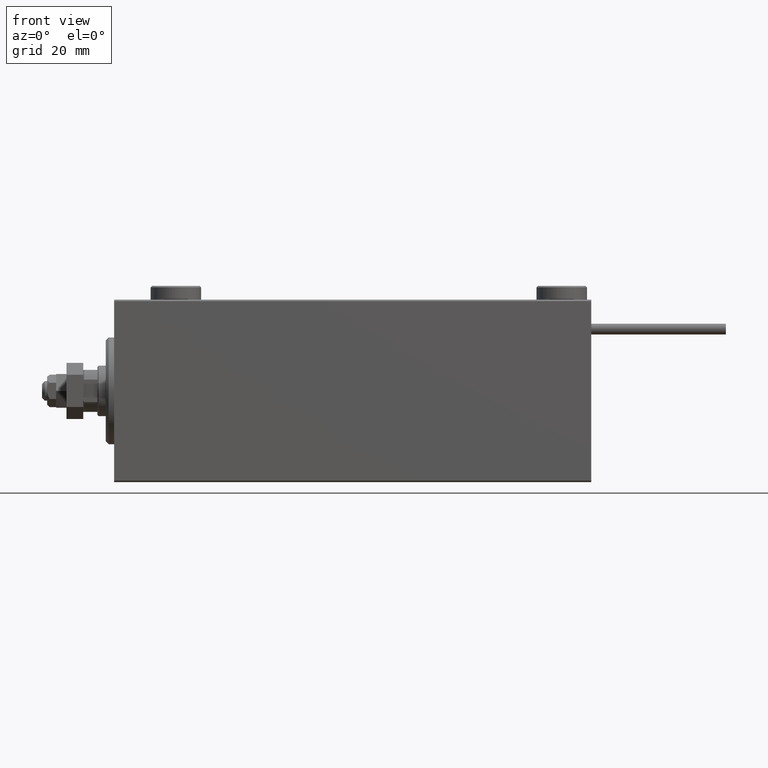
[diagram: clean part render]
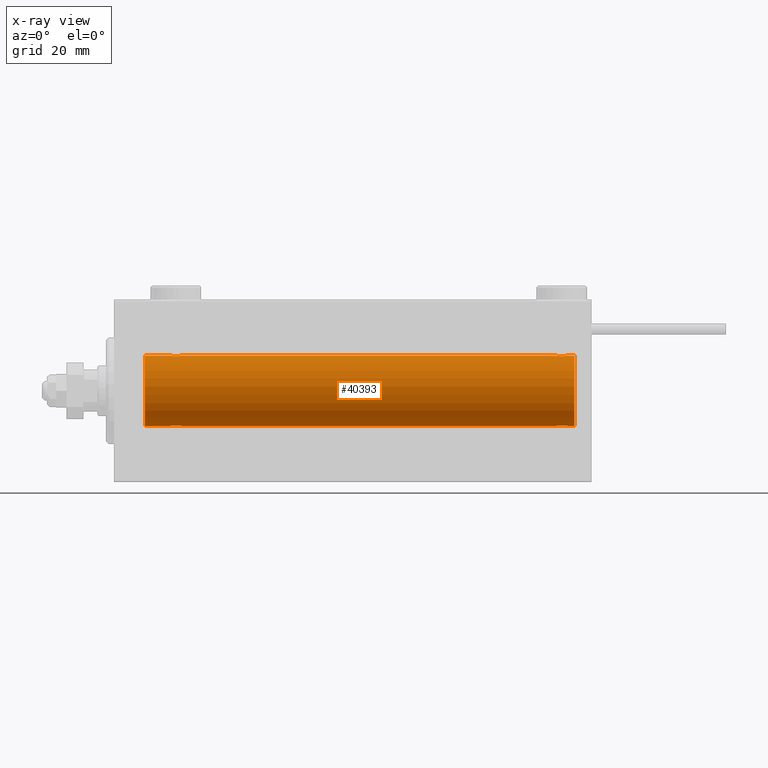
[diagram: x-ray — body ghosted, one internal face saturated and labeled with its STEP entity id]
A machine part, front view, then the same camera in x-ray: the body is ghosted and one INTERNAL B-rep face — a face not visible from any outside direction — is saturated and labeled: STEP entity #40393.
In plain terms, the highlighted cylindrical surface (edge-blend (fillet) strip) has radius 12.5 mm, axis along (-1, -0, -0).
Its self-contained STEP definition (entity closure, byte-faithful):
#369 = LINE ( 'NONE', #40763, #25549 ) ;
#893 = CARTESIAN_POINT ( 'NONE',  ( 21.86910032676576421, -2.000082296475566679, -12.33894933996983490 ) ) ;
#1412 = CARTESIAN_POINT ( 'NONE',  ( 21.48306273302371494, -1.936441098420706997, -12.34912369794528431 ) ) ;
#1685 = CARTESIAN_POINT ( 'NONE',  ( 21.35574721202270254, -1.897913903092047327, -12.35518060345725289 ) ) ;
#1821 = CARTESIAN_POINT ( 'NONE',  ( 21.35356103036408371, -1.897190184049190043, 12.35529285772521391 ) ) ;
#2002 = CARTESIAN_POINT ( 'NONE',  ( 164.0000000000000000, 0.000000000000000000, 0.000000000000000000 ) ) ;
#2125 = CARTESIAN_POINT ( 'NONE',  ( 161.5000000000000000, 1.530808426269529245E-15, -12.50000000000000000 ) ) ;
#2679 = CARTESIAN_POINT ( 'NONE',  ( 164.0000000000000000, 0.000000000000000000, 0.000000000000000000 ) ) ;
#2773 = B_SPLINE_CURVE_WITH_KNOTS ( 'NONE', 3,
 ( #15061, #51723, #31276, #15320, #44801, #12373, #32312, #28595, #20343, #7845, #52499, #8635, #16088, #48535, #4909, #4111, #24343, #32829, #16628, #41055, #49053, #4646, #21136, #3854, #25132, #12634, #45065, #24874 ),
 .UNSPECIFIED., .F., .F.,
 ( 4, 2, 2, 2, 2, 2, 2, 2, 2, 2, 2, 2, 2, 4 ),
 ( 0.006262980370572171496, 0.007045658964677375090, 0.007436998261729976453, 0.007828337558782578684, 0.008219676855835179180, 0.008611016152887781411, 0.009002355449940383642, 0.009393694746992985872, 0.009785034044045588103, 0.01017637334109819033, 0.01056771263815079256, 0.01095905193520339306, 0.01174173052930859579, 0.01252440912341379851 ),
 .UNSPECIFIED. ) ;
#2871 = DIRECTION ( 'NONE',  ( 0.000000000000000000, 0.000000000000000000, 1.000000000000000000 ) ) ;
#3578 = CARTESIAN_POINT ( 'NONE',  ( 158.2814588045805522, -1.591305132013888457, -12.39851226212235957 ) ) ;
#3854 = CARTESIAN_POINT ( 'NONE',  ( 161.0974477469102908, -1.231226695485358569, 12.44059298055988450 ) ) ;
#4111 = CARTESIAN_POINT ( 'NONE',  ( 159.6308996732342678, -2.000082296475561794, 12.33894933996983134 ) ) ;
#4327 = CARTESIAN_POINT ( 'NONE',  ( 164.0000000000000000, 0.000000000000000000, 12.50000000000000000 ) ) ;
#4395 = CARTESIAN_POINT ( 'NONE',  ( 24.00000000000000000, -2.019790789754703983E-15, 12.50000000000000000 ) ) ;
#4646 = CARTESIAN_POINT ( 'NONE',  ( 160.7185411954193626, -1.591305132013873358, 12.39851226212236490 ) ) ;
#4881 = CARTESIAN_POINT ( 'NONE',  ( 22.88874725797039389, -1.796480516834687347, -12.37033750336835247 ) ) ;
#4909 = CARTESIAN_POINT ( 'NONE',  ( 159.3665974954870137, -1.999916920503812090, 12.33897614545467292 ) ) ;
#5399 = CARTESIAN_POINT ( 'NONE',  ( 22.64643896963591985, -1.897190184049187378, -12.35529285772521924 ) ) ;
#5673 = CARTESIAN_POINT ( 'NONE',  ( 23.50722151467992660, -1.321088093821078502, -12.43033959299025248 ) ) ;
#6074 = CARTESIAN_POINT ( 'NONE',  ( 22.51693726697628506, -1.936441098420709439, 12.34912369794528786 ) ) ;
#6400 = FACE_OUTER_BOUND ( 'NONE', #22460, .T. ) ;
#6592 = CARTESIAN_POINT ( 'NONE',  ( 20.67700056892266502, -1.505544071529936634, 12.40934942683854025 ) ) ;
#6782 = CARTESIAN_POINT ( 'NONE',  ( 158.8557472120227203, -1.897913903092060650, -12.35518060345724933 ) ) ;
#6852 = CARTESIAN_POINT ( 'NONE',  ( 21.73608626897564733, -1.986793270638199882, 12.34112317291865146 ) ) ;
#6858 = EDGE_CURVE ( 'NONE', #13747, #34546, #15780, .T. ) ;
#7116 = CARTESIAN_POINT ( 'NONE',  ( 23.94665679898379906, -0.5275951738695691118, 12.49118442338578561 ) ) ;
#7286 = VECTOR ( 'NONE', #32653, 1000.000000000000000 ) ;
#7310 = CARTESIAN_POINT ( 'NONE',  ( 160.0196147235787691, -1.935716533151650820, -12.34923763528284724 ) ) ;
#7532 = ORIENTED_EDGE ( 'NONE', *, *, #27179, .T. ) ;
#7634 = CARTESIAN_POINT ( 'NONE',  ( 11.00000000000001066, 0.000000000000000000, 0.000000000000000000 ) ) ;
#7721 = CARTESIAN_POINT ( 'NONE',  ( 164.0000000000000000, 1.530808498934191521E-15, -12.50000000000000000 ) ) ;
#7845 = CARTESIAN_POINT ( 'NONE',  ( 158.4965442592331044, -1.734959850168406259, 12.37922718965050883 ) ) ;
#7951 = B_SPLINE_CURVE_WITH_KNOTS ( 'NONE', 3,
 ( #24850, #33849, #13662, #21112, #38367, #34118, #5673, #9128, #37831, #25892, #4881, #5399, #18181, #50065, #29875, #893, #49535, #1412, #1685, #37306, #17122, #42077, #33324, #9391, #12873, #45299, #46086, #8872 ),
 .UNSPECIFIED., .F., .F.,
 ( 4, 2, 2, 2, 2, 2, 2, 2, 2, 2, 2, 2, 2, 4 ),
 ( 0.006262980370572176700, 0.007045658964677373355, 0.007436998261729973851, 0.007828337558782575215, 0.008219676855835175711, 0.008611016152887776207, 0.009002355449940376703, 0.009393694746992977199, 0.009785034044045577695, 0.01017637334109817646, 0.01056771263815077869, 0.01095905193520337745, 0.01174173052930858711, 0.01252440912341379504 ),
 .UNSPECIFIED. ) ;
#8006 = VECTOR ( 'NONE', #40662, 1000.000000000000000 ) ;
#8010 = ORIENTED_EDGE ( 'NONE', *, *, #27637, .F. ) ;
#8635 = CARTESIAN_POINT ( 'NONE',  ( 158.8535610303641192, -1.897190184049181383, 12.35529285772521391 ) ) ;
#8872 = CARTESIAN_POINT ( 'NONE',  ( 19.99999999999999645, -3.213890523917628161E-15, -12.50000000000000000 ) ) ;
#9128 = CARTESIAN_POINT ( 'NONE',  ( 23.32299943107732432, -1.505544071529935080, -12.40934942683853848 ) ) ;
#9221 = AXIS2_PLACEMENT_3D ( 'NONE', #2679, #50804, #43076 ) ;
#9391 = CARTESIAN_POINT ( 'NONE',  ( 20.40255225308977671, -1.231226695485369893, -12.44059298055988627 ) ) ;
#10029 = LINE ( 'NONE', #35008, #26723 ) ;
#10063 = CARTESIAN_POINT ( 'NONE',  ( 19.99999999999999645, -7.265724481447607133E-23, 12.50000000000000000 ) ) ;
#10476 = ORIENTED_EDGE ( 'NONE', *, *, #13973, .F. ) ;
#10522 = CARTESIAN_POINT ( 'NONE',  ( 157.5533432010162187, -0.5275951738695863202, -12.49118442338578028 ) ) ;
#10587 = CARTESIAN_POINT ( 'NONE',  ( 21.11125274202960256, -1.796480516834689567, 12.37033750336835602 ) ) ;
#11039 = CARTESIAN_POINT ( 'NONE',  ( 157.9025522530897376, -1.231226695485374778, -12.44059298055987917 ) ) ;
#11108 = CARTESIAN_POINT ( 'NONE',  ( 22.88616153879432957, -1.797736511708064366, 12.37015393445321010 ) ) ;
#11372 = DIRECTION ( 'NONE',  ( -1.000000000000000000, 0.000000000000000000, 0.000000000000000000 ) ) ;
#11567 = CARTESIAN_POINT ( 'NONE',  ( 161.2978560646826054, -0.8858253204748055554, -12.46915613403961665 ) ) ;
#12280 = VERTEX_POINT ( 'NONE', #13966 ) ;
#12373 = CARTESIAN_POINT ( 'NONE',  ( 157.9101890977170797, -1.220538259806341008, 12.44075068685997110 ) ) ;
#12634 = CARTESIAN_POINT ( 'NONE',  ( 161.4466567989838097, -0.5275951738695676685, 12.49118442338578738 ) ) ;
#12819 = CARTESIAN_POINT ( 'NONE',  ( 164.0000000000000000, 1.530808498934191521E-15, -12.50000000000000000 ) ) ;
#12873 = CARTESIAN_POINT ( 'NONE',  ( 20.25337863379106551, -1.008535157355840761, -12.46157701909767646 ) ) ;
#13662 = CARTESIAN_POINT ( 'NONE',  ( 23.94744340572329833, -0.5247436444070328054, -12.49130933415156619 ) ) ;
#13685 = VERTEX_POINT ( 'NONE', #44683 ) ;
#13747 = VERTEX_POINT ( 'NONE', #2125 ) ;
#13966 = CARTESIAN_POINT ( 'NONE',  ( 157.5000000000000000, -7.266434456262306043E-23, 12.50000000000000000 ) ) ;
#13973 = EDGE_CURVE ( 'NONE', #41693, #13685, #24169, .T. ) ;
#14065 = CARTESIAN_POINT ( 'NONE',  ( 22.26093497285606304, -1.987194304939079004, 12.34105826212746138 ) ) ;
#14521 = CARTESIAN_POINT ( 'NONE',  ( 160.1464389696359660, -1.897190184049198036, -12.35529285772521213 ) ) ;
#14815 = DIRECTION ( 'NONE',  ( -1.000000000000000000, -0.000000000000000000, -0.000000000000000000 ) ) ;
#14897 = VECTOR ( 'NONE', #39699, 1000.000000000000000 ) ;
#14941 = ORIENTED_EDGE ( 'NONE', *, *, #42086, .T. ) ;
#15037 = CARTESIAN_POINT ( 'NONE',  ( 161.0898109022829203, -1.220538259806352333, -12.44075068685996932 ) ) ;
#15061 = CARTESIAN_POINT ( 'NONE',  ( 157.5000000000000000, -7.266434456262306043E-23, 12.50000000000000000 ) ) ;
#15105 = CARTESIAN_POINT ( 'NONE',  ( 23.59744774691022684, -1.231226695485370337, 12.44059298055987917 ) ) ;
#15320 = CARTESIAN_POINT ( 'NONE',  ( 157.7021439353174515, -0.8858253204748001153, 12.46915613403961132 ) ) ;
#15780 = B_SPLINE_CURVE_WITH_KNOTS ( 'NONE', 3,
 ( #34189, #30475, #42940, #11567, #43201, #15037, #19298, #27279, #51960, #35759, #39992, #14521, #7310, #35497, #19033, #47735, #19557, #31255, #6782, #46952, #47471, #3578, #51702, #11039, #26757, #10522, #50922, #34973 ),
 .UNSPECIFIED., .F., .F.,
 ( 4, 2, 2, 2, 2, 2, 2, 2, 2, 2, 2, 2, 2, 4 ),
 ( 0.006262980370572156751, 0.007045658964677361212, 0.007436998261729963443, 0.007828337558782566541, 0.008219676855835168772, 0.008611016152887771002, 0.009002355449940373233, 0.009393694746992975464, 0.009785034044045577695, 0.01017637334109817993, 0.01056771263815078216, 0.01095905193520338439, 0.01174173052930858885, 0.01252440912341379331 ),
 .UNSPECIFIED. ) ;
#16088 = CARTESIAN_POINT ( 'NONE',  ( 158.9803852764212593, -1.935716533151636165, 12.34923763528285434 ) ) ;
#16247 = VERTEX_POINT ( 'NONE', #40521 ) ;
#16628 = CARTESIAN_POINT ( 'NONE',  ( 160.1442527879773365, -1.897913903092044663, 12.35518060345725289 ) ) ;
#16980 = CARTESIAN_POINT ( 'NONE',  ( 11.00000000000001066, 1.530808498934191521E-15, -12.50000000000000000 ) ) ;
#17122 = CARTESIAN_POINT ( 'NONE',  ( 20.99900207901491811, -1.736403706023270654, -12.37902502246767966 ) ) ;
#18181 = CARTESIAN_POINT ( 'NONE',  ( 22.51961472357873717, -1.935716533151642826, -12.34923763528285257 ) ) ;
#18235 = DIRECTION ( 'NONE',  ( -1.000000000000000000, 0.000000000000000000, 0.000000000000000000 ) ) ;
#18321 = CARTESIAN_POINT ( 'NONE',  ( 23.21854119541937678, -1.591305132013879131, 12.39851226212236135 ) ) ;
#19033 = CARTESIAN_POINT ( 'NONE',  ( 159.6334025045129863, -1.999916920503827633, -12.33897614545467114 ) ) ;
#19298 = CARTESIAN_POINT ( 'NONE',  ( 161.0072215146799977, -1.321088093821073395, -12.43033959299025426 ) ) ;
#19450 = CIRCLE ( 'NONE', #44053, 12.50000000000000000 ) ;
#19557 = CARTESIAN_POINT ( 'NONE',  ( 159.2390650271439370, -1.987194304939089884, -12.34105826212745782 ) ) ;
#19638 = B_SPLINE_CURVE_WITH_KNOTS ( 'NONE', 3,
 ( #10063, #42480, #31051, #50734, #22831, #38234, #22571, #6592, #23097, #51505, #10587, #1821, #43531, #6852, #31320, #38761, #14065, #6074, #34779, #11108, #22311, #18321, #42746, #15105, #30538, #7116, #50990, #39012 ),
 .UNSPECIFIED., .F., .F.,
 ( 4, 2, 2, 2, 2, 2, 2, 2, 2, 2, 2, 2, 2, 4 ),
 ( 0.006262980370572162822, 0.007045658964677358610, 0.007436998261729958239, 0.007828337558782557867, 0.008219676855835158363, 0.008611016152887758859, 0.009002355449940359355, 0.009393694746992958117, 0.009785034044045558613, 0.01017637334109815911, 0.01056771263815075960, 0.01095905193520336010, 0.01174173052930856803, 0.01252440912341377596 ),
 .UNSPECIFIED. ) ;
#20343 = CARTESIAN_POINT ( 'NONE',  ( 158.2797285010257724, -1.589951752150270181, 12.39868561261689095 ) ) ;
#21112 = CARTESIAN_POINT ( 'NONE',  ( 23.79785606468258052, -0.8858253204748003373, -12.46915613403960954 ) ) ;
#21136 = CARTESIAN_POINT ( 'NONE',  ( 160.8211671285144462, -1.507135374967689234, 12.40915432986587241 ) ) ;
#21717 = EDGE_CURVE ( 'NONE', #41693, #29758, #19638, .T. ) ;
#22311 = CARTESIAN_POINT ( 'NONE',  ( 23.00099792098507834, -1.736403706023272875, 12.37902502246767789 ) ) ;
#22460 = EDGE_LOOP ( 'NONE', ( #37238, #36283, #49034, #36817, #35400, #7532, #30565, #10476, #44134, #8010, #14941, #33473 ) ) ;
#22571 = CARTESIAN_POINT ( 'NONE',  ( 20.49277848532006274, -1.321088093821079168, 12.43033959299025071 ) ) ;
#22831 = CARTESIAN_POINT ( 'NONE',  ( 20.26436921980423378, -1.002396200863559850, 12.46022444231050841 ) ) ;
#23097 = CARTESIAN_POINT ( 'NONE',  ( 20.77972850102579372, -1.589951752150277953, 12.39868561261689095 ) ) ;
#23841 = EDGE_CURVE ( 'NONE', #51090, #29131, #46668, .T. ) ;
#24169 = LINE ( 'NONE', #32131, #7286 ) ;
#24343 = CARTESIAN_POINT ( 'NONE',  ( 159.7609349728561199, -1.987194304939070788, 12.34105826212745960 ) ) ;
#24850 = CARTESIAN_POINT ( 'NONE',  ( 24.00000000000000000, 1.530808426277417854E-15, -12.50000000000000000 ) ) ;
#24874 = CARTESIAN_POINT ( 'NONE',  ( 161.5000000000000000, 3.161822422844574965E-15, 12.50000000000000000 ) ) ;
#25132 = CARTESIAN_POINT ( 'NONE',  ( 161.2466213662089842, -1.008535157355840761, 12.46157701909768178 ) ) ;
#25549 = VECTOR ( 'NONE', #45035, 1000.000000000000000 ) ;
#25892 = CARTESIAN_POINT ( 'NONE',  ( 23.00345574076691335, -1.734959850168410256, -12.37922718965050528 ) ) ;
#26723 = VECTOR ( 'NONE', #14815, 1000.000000000000000 ) ;
#26757 = CARTESIAN_POINT ( 'NONE',  ( 157.7533786337910726, -1.008535157355858525, -12.46157701909767468 ) ) ;
#27179 = EDGE_CURVE ( 'NONE', #29566, #31864, #35908, .T. ) ;
#27279 = CARTESIAN_POINT ( 'NONE',  ( 160.8229994310773918, -1.505544071529932415, -12.40934942683854025 ) ) ;
#27637 = EDGE_CURVE ( 'NONE', #12280, #29758, #10029, .T. ) ;
#28256 = DIRECTION ( 'NONE',  ( -1.000000000000000000, -0.000000000000000000, -0.000000000000000000 ) ) ;
#28595 = CARTESIAN_POINT ( 'NONE',  ( 158.1770005689227219, -1.505544071529936634, 12.40934942683854203 ) ) ;
#29089 = CARTESIAN_POINT ( 'NONE',  ( 157.5000000000000000, -1.754126588401769966E-14, -12.50000000000000000 ) ) ;
#29131 = VERTEX_POINT ( 'NONE', #51928 ) ;
#29140 = EDGE_CURVE ( 'NONE', #29131, #44055, #39956, .T. ) ;
#29566 = VERTEX_POINT ( 'NONE', #39246 ) ;
#29758 = VERTEX_POINT ( 'NONE', #4395 ) ;
#29875 = CARTESIAN_POINT ( 'NONE',  ( 22.13340250451295077, -1.999916920503817197, -12.33897614545467469 ) ) ;
#30475 = CARTESIAN_POINT ( 'NONE',  ( 161.5000000000000568, -0.2612140938986745597, -12.50000000000000178 ) ) ;
#30538 = CARTESIAN_POINT ( 'NONE',  ( 23.74662136620892383, -1.008535157355843648, 12.46157701909767823 ) ) ;
#30565 = ORIENTED_EDGE ( 'NONE', *, *, #40815, .T. ) ;
#31051 = CARTESIAN_POINT ( 'NONE',  ( 20.05255659427669812, -0.5247436444070349149, 12.49130933415156974 ) ) ;
#31255 = CARTESIAN_POINT ( 'NONE',  ( 158.9830627330237292, -1.936441098420720319, -12.34912369794528608 ) ) ;
#31276 = CARTESIAN_POINT ( 'NONE',  ( 157.5525565942766946, -0.5247436444070314732, 12.49130933415156619 ) ) ;
#31320 = CARTESIAN_POINT ( 'NONE',  ( 21.86659749548704212, -1.999916920503819862, 12.33897614545467469 ) ) ;
#31864 = VERTEX_POINT ( 'NONE', #16980 ) ;
#32131 = CARTESIAN_POINT ( 'NONE',  ( 164.0000000000000000, 0.000000000000000000, 12.50000000000000000 ) ) ;
#32312 = CARTESIAN_POINT ( 'NONE',  ( 157.9927784853200308, -1.321088093821080278, 12.43033959299025071 ) ) ;
#32653 = DIRECTION ( 'NONE',  ( -1.000000000000000000, -0.000000000000000000, -0.000000000000000000 ) ) ;
#32754 = LINE ( 'NONE', #12819, #38750 ) ;
#32829 = CARTESIAN_POINT ( 'NONE',  ( 160.0169372669762993, -1.936441098420697671, 12.34912369794529141 ) ) ;
#33324 = CARTESIAN_POINT ( 'NONE',  ( 20.67883287148555382, -1.507135374967699670, -12.40915432986587064 ) ) ;
#33473 = ORIENTED_EDGE ( 'NONE', *, *, #29140, .F. ) ;
#33849 = CARTESIAN_POINT ( 'NONE',  ( 24.00000000000000711, -0.2612140938986747818, -12.50000000000000533 ) ) ;
#34118 = CARTESIAN_POINT ( 'NONE',  ( 23.58981090228289546, -1.220538259806347225, -12.44075068685997287 ) ) ;
#34189 = CARTESIAN_POINT ( 'NONE',  ( 161.5000000000000000, 1.530808426269529245E-15, -12.50000000000000000 ) ) ;
#34435 = DIRECTION ( 'NONE',  ( 0.000000000000000000, 0.000000000000000000, 1.000000000000000000 ) ) ;
#34540 = EDGE_CURVE ( 'NONE', #16247, #29566, #7951, .T. ) ;
#34546 = VERTEX_POINT ( 'NONE', #29089 ) ;
#34779 = CARTESIAN_POINT ( 'NONE',  ( 22.64425278797729746, -1.897913903092049104, 12.35518060345724933 ) ) ;
#34973 = CARTESIAN_POINT ( 'NONE',  ( 157.5000000000000000, -1.754126588401769966E-14, -12.50000000000000000 ) ) ;
#35008 = CARTESIAN_POINT ( 'NONE',  ( 164.0000000000000000, 0.000000000000000000, 12.50000000000000000 ) ) ;
#35400 = ORIENTED_EDGE ( 'NONE', *, *, #34540, .T. ) ;
#35466 = EDGE_CURVE ( 'NONE', #51090, #13747, #32754, .T. ) ;
#35497 = CARTESIAN_POINT ( 'NONE',  ( 159.7639137310243598, -1.986793270638207209, -12.34112317291865146 ) ) ;
#35759 = CARTESIAN_POINT ( 'NONE',  ( 160.5034557407669809, -1.734959850168406259, -12.37922718965051061 ) ) ;
#35908 = LINE ( 'NONE', #7721, #8006 ) ;
#36283 = ORIENTED_EDGE ( 'NONE', *, *, #35466, .T. ) ;
#36817 = ORIENTED_EDGE ( 'NONE', *, *, #46212, .T. ) ;
#37238 = ORIENTED_EDGE ( 'NONE', *, *, #23841, .F. ) ;
#37306 = CARTESIAN_POINT ( 'NONE',  ( 21.11383846120566332, -1.797736511708062368, -12.37015393445320122 ) ) ;
#37831 = CARTESIAN_POINT ( 'NONE',  ( 23.22027149897420628, -1.589951752150275732, -12.39868561261689273 ) ) ;
#38234 = CARTESIAN_POINT ( 'NONE',  ( 20.41018909771709744, -1.220538259806348114, 12.44075068685996754 ) ) ;
#38367 = CARTESIAN_POINT ( 'NONE',  ( 23.73563078019576977, -1.002396200863559184, -12.46022444231050663 ) ) ;
#38750 = VECTOR ( 'NONE', #28256, 1000.000000000000000 ) ;
#38761 = CARTESIAN_POINT ( 'NONE',  ( 22.13089967323422158, -2.000082296475567567, 12.33894933996983134 ) ) ;
#38824 = CYLINDRICAL_SURFACE ( 'NONE', #9221, 12.50000000000000000 ) ;
#39012 = CARTESIAN_POINT ( 'NONE',  ( 24.00000000000000000, -2.019790789754703983E-15, 12.50000000000000000 ) ) ;
#39246 = CARTESIAN_POINT ( 'NONE',  ( 19.99999999999999645, -3.213890523917628161E-15, -12.50000000000000000 ) ) ;
#39699 = DIRECTION ( 'NONE',  ( -1.000000000000000000, -0.000000000000000000, -0.000000000000000000 ) ) ;
#39956 = LINE ( 'NONE', #4327, #14897 ) ;
#39992 = CARTESIAN_POINT ( 'NONE',  ( 160.3887472579704081, -1.796480516834696006, -12.37033750336835602 ) ) ;
#40393 = ADVANCED_FACE ( 'NONE', ( #6400 ), #38824, .F. ) ;
#40521 = CARTESIAN_POINT ( 'NONE',  ( 24.00000000000000000, 1.530808426277417854E-15, -12.50000000000000000 ) ) ;
#40662 = DIRECTION ( 'NONE',  ( -1.000000000000000000, -0.000000000000000000, -0.000000000000000000 ) ) ;
#40763 = CARTESIAN_POINT ( 'NONE',  ( 164.0000000000000000, 1.530808498934191521E-15, -12.50000000000000000 ) ) ;
#40815 = EDGE_CURVE ( 'NONE', #31864, #13685, #19450, .T. ) ;
#41055 = CARTESIAN_POINT ( 'NONE',  ( 160.3861615387943971, -1.797736511708058815, 12.37015393445321187 ) ) ;
#41693 = VERTEX_POINT ( 'NONE', #51330 ) ;
#42077 = CARTESIAN_POINT ( 'NONE',  ( 20.78145880458060901, -1.591305132013878021, -12.39851226212236313 ) ) ;
#42086 = EDGE_CURVE ( 'NONE', #12280, #44055, #2773, .T. ) ;
#42183 = CARTESIAN_POINT ( 'NONE',  ( 164.0000000000000000, 1.530808498934191521E-15, -12.50000000000000000 ) ) ;
#42480 = CARTESIAN_POINT ( 'NONE',  ( 20.00000000000000000, -0.2612140938986765581, 12.50000000000000000 ) ) ;
#42746 = CARTESIAN_POINT ( 'NONE',  ( 23.32116712851443552, -1.507135374967700114, 12.40915432986586708 ) ) ;
#42940 = CARTESIAN_POINT ( 'NONE',  ( 161.4474434057233339, -0.5247436444070351369, -12.49130933415156974 ) ) ;
#43076 = DIRECTION ( 'NONE',  ( 0.000000000000000000, 0.000000000000000000, 1.000000000000000000 ) ) ;
#43201 = CARTESIAN_POINT ( 'NONE',  ( 161.2356307801957485, -1.002396200863562736, -12.46022444231050841 ) ) ;
#43531 = CARTESIAN_POINT ( 'NONE',  ( 21.48038527642126283, -1.935716533151644381, 12.34923763528284901 ) ) ;
#44053 = AXIS2_PLACEMENT_3D ( 'NONE', #7634, #11372, #2871 ) ;
#44055 = VERTEX_POINT ( 'NONE', #47229 ) ;
#44134 = ORIENTED_EDGE ( 'NONE', *, *, #21717, .T. ) ;
#44683 = CARTESIAN_POINT ( 'NONE',  ( 11.00000000000001066, 0.000000000000000000, 12.50000000000000000 ) ) ;
#44801 = CARTESIAN_POINT ( 'NONE',  ( 157.7643692198042231, -1.002396200863552300, 12.46022444231050841 ) ) ;
#45035 = DIRECTION ( 'NONE',  ( -1.000000000000000000, -0.000000000000000000, -0.000000000000000000 ) ) ;
#45065 = CARTESIAN_POINT ( 'NONE',  ( 161.5000000000000284, -0.2646816682749797423, 12.50000000000000533 ) ) ;
#45299 = CARTESIAN_POINT ( 'NONE',  ( 20.05334320101619738, -0.5275951738695662252, -12.49118442338578561 ) ) ;
#46086 = CARTESIAN_POINT ( 'NONE',  ( 20.00000000000000000, -0.2646816682749822958, -12.50000000000000000 ) ) ;
#46212 = EDGE_CURVE ( 'NONE', #34546, #16247, #369, .T. ) ;
#46668 = CIRCLE ( 'NONE', #50064, 12.50000000000000000 ) ;
#46952 = CARTESIAN_POINT ( 'NONE',  ( 158.6138384612056598, -1.797736511708074358, -12.37015393445320299 ) ) ;
#47229 = CARTESIAN_POINT ( 'NONE',  ( 161.5000000000000000, 3.161822422844574965E-15, 12.50000000000000000 ) ) ;
#47471 = CARTESIAN_POINT ( 'NONE',  ( 158.4990020790149003, -1.736403706023283311, -12.37902502246767789 ) ) ;
#47735 = CARTESIAN_POINT ( 'NONE',  ( 159.3691003267657607, -2.000082296475576893, -12.33894933996983134 ) ) ;
#48535 = CARTESIAN_POINT ( 'NONE',  ( 159.2360862689756686, -1.986793270638192555, 12.34112317291865324 ) ) ;
#49034 = ORIENTED_EDGE ( 'NONE', *, *, #6858, .T. ) ;
#49053 = CARTESIAN_POINT ( 'NONE',  ( 160.5009979209851281, -1.736403706023267546, 12.37902502246767966 ) ) ;
#49535 = CARTESIAN_POINT ( 'NONE',  ( 21.73906502714393341, -1.987194304939077671, -12.34105826212746138 ) ) ;
#50064 = AXIS2_PLACEMENT_3D ( 'NONE', #2002, #18235, #34435 ) ;
#50065 = CARTESIAN_POINT ( 'NONE',  ( 22.26391373102435622, -1.986793270638196551, -12.34112317291864791 ) ) ;
#50734 = CARTESIAN_POINT ( 'NONE',  ( 20.20214393531741237, -0.8858253204748030019, 12.46915613403961132 ) ) ;
#50804 = DIRECTION ( 'NONE',  ( -1.000000000000000000, -0.000000000000000000, -0.000000000000000000 ) ) ;
#50922 = CARTESIAN_POINT ( 'NONE',  ( 157.5000000000000000, -0.2646816682749994487, -12.50000000000000178 ) ) ;
#50990 = CARTESIAN_POINT ( 'NONE',  ( 23.99999999999998934, -0.2646816682749779659, 12.49999999999999822 ) ) ;
#51090 = VERTEX_POINT ( 'NONE', #42183 ) ;
#51330 = CARTESIAN_POINT ( 'NONE',  ( 19.99999999999999645, -7.265724481447607133E-23, 12.50000000000000000 ) ) ;
#51505 = CARTESIAN_POINT ( 'NONE',  ( 20.99654425923307599, -1.734959850168413142, 12.37922718965050528 ) ) ;
#51702 = CARTESIAN_POINT ( 'NONE',  ( 158.1788328714855822, -1.507135374967705665, -12.40915432986586353 ) ) ;
#51723 = CARTESIAN_POINT ( 'NONE',  ( 157.5000000000000853, -0.2612140938986755589, 12.50000000000000533 ) ) ;
#51928 = CARTESIAN_POINT ( 'NONE',  ( 164.0000000000000000, 0.000000000000000000, 12.50000000000000000 ) ) ;
#51960 = CARTESIAN_POINT ( 'NONE',  ( 160.7202714989741992, -1.589951752150265962, -12.39868561261689095 ) ) ;
#52499 = CARTESIAN_POINT ( 'NONE',  ( 158.6112527420295635, -1.796480516834680019, 12.37033750336835602 ) ) ;